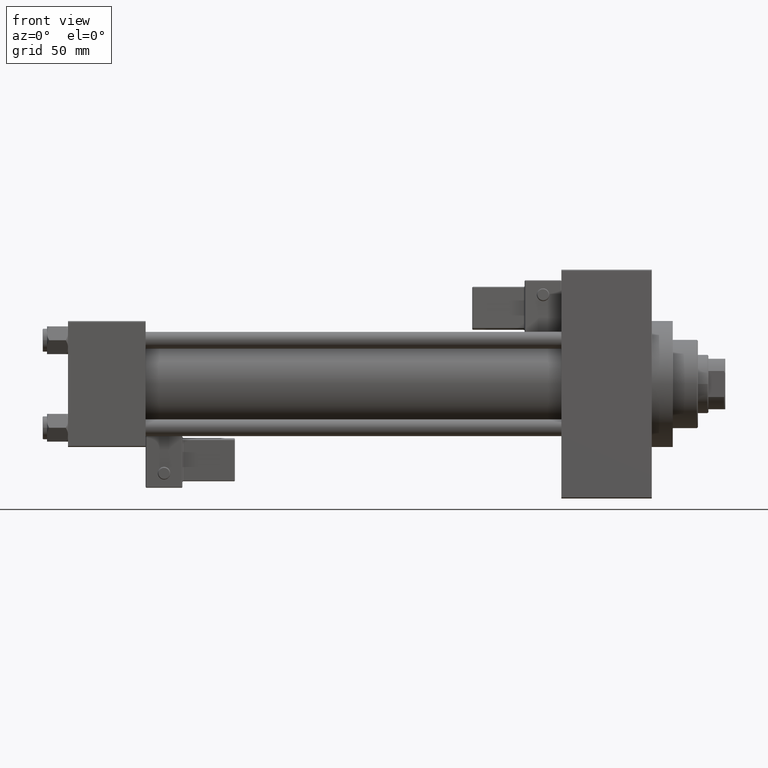
[diagram: clean part render]
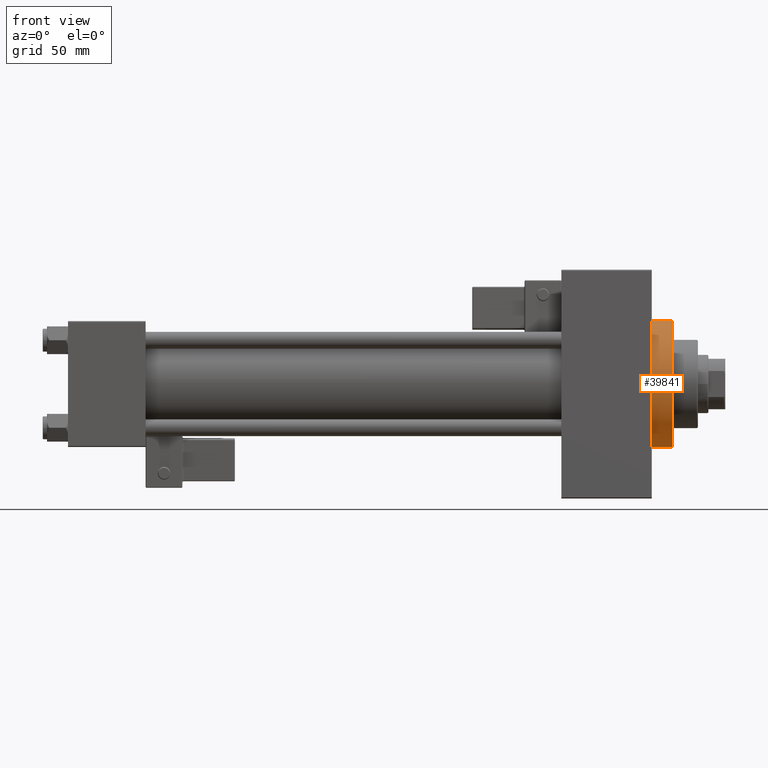
[diagram: same view with one face highlighted and labeled with its STEP entity id]
A machine part, front view. The second image highlights one B-rep face of the part: STEP entity #39841.
In plain terms, the highlighted cylindrical surface (partial cylindrical patch) has radius 30 mm, axis along (-1, -0, -0).
Its self-contained STEP definition (entity closure, byte-faithful):
#2722 = ORIENTED_EDGE ( 'NONE', *, *, #23707, .T. ) ;
#2800 = CARTESIAN_POINT ( 'NONE',  ( 288.0000000000000568, 3.673940397442059178E-15, -30.00000000000000000 ) ) ;
#3856 = DIRECTION ( 'NONE',  ( 1.000000000000000000, 0.000000000000000000, 0.000000000000000000 ) ) ;
#4911 = EDGE_CURVE ( 'NONE', #7836, #33370, #48007, .T. ) ;
#5431 = CIRCLE ( 'NONE', #27935, 30.00000000000000000 ) ;
#7836 = VERTEX_POINT ( 'NONE', #12195 ) ;
#8494 = DIRECTION ( 'NONE',  ( -1.000000000000000000, -0.000000000000000000, -0.000000000000000000 ) ) ;
#10986 = CYLINDRICAL_SURFACE ( 'NONE', #42240, 30.00000000000000000 ) ;
#11090 = EDGE_CURVE ( 'NONE', #16842, #7836, #45709, .T. ) ;
#12097 = VERTEX_POINT ( 'NONE', #45278 ) ;
#12195 = CARTESIAN_POINT ( 'NONE',  ( 278.0000000000000000, 0.000000000000000000, 30.00000000000000000 ) ) ;
#12459 = CARTESIAN_POINT ( 'NONE',  ( 288.0000000000000568, 0.000000000000000000, 0.000000000000000000 ) ) ;
#15709 = DIRECTION ( 'NONE',  ( 1.000000000000000000, 0.000000000000000000, 0.000000000000000000 ) ) ;
#16842 = VERTEX_POINT ( 'NONE', #46425 ) ;
#18280 = FACE_OUTER_BOUND ( 'NONE', #45314, .T. ) ;
#23707 = EDGE_CURVE ( 'NONE', #33370, #12097, #37332, .T. ) ;
#27132 = AXIS2_PLACEMENT_3D ( 'NONE', #49116, #3856, #49359 ) ;
#27804 = DIRECTION ( 'NONE',  ( 1.000000000000000000, 0.000000000000000000, 0.000000000000000000 ) ) ;
#27935 = AXIS2_PLACEMENT_3D ( 'NONE', #12459, #27804, #43137 ) ;
#28739 = VERTEX_POINT ( 'NONE', #2800 ) ;
#30063 = EDGE_CURVE ( 'NONE', #16842, #28739, #5431, .T. ) ;
#30107 = DIRECTION ( 'NONE',  ( 0.000000000000000000, 0.000000000000000000, 1.000000000000000000 ) ) ;
#30527 = VECTOR ( 'NONE', #46510, 1000.000000000000000 ) ;
#30579 = DIRECTION ( 'NONE',  ( 0.000000000000000000, 0.000000000000000000, -1.000000000000000000 ) ) ;
#33191 = ORIENTED_EDGE ( 'NONE', *, *, #4911, .T. ) ;
#33370 = VERTEX_POINT ( 'NONE', #42638 ) ;
#34110 = AXIS2_PLACEMENT_3D ( 'NONE', #38100, #15709, #30579 ) ;
#34164 = CARTESIAN_POINT ( 'NONE',  ( 288.0000000000000568, 0.000000000000000000, 30.00000000000000000 ) ) ;
#37332 = CIRCLE ( 'NONE', #34110, 30.00000000000000000 ) ;
#37780 = VECTOR ( 'NONE', #8494, 1000.000000000000000 ) ;
#38100 = CARTESIAN_POINT ( 'NONE',  ( 278.0000000000000000, 0.000000000000000000, 0.000000000000000000 ) ) ;
#38537 = ORIENTED_EDGE ( 'NONE', *, *, #11090, .T. ) ;
#39841 = ADVANCED_FACE ( 'NONE', ( #18280 ), #10986, .T. ) ;
#40524 = ORIENTED_EDGE ( 'NONE', *, *, #48964, .F. ) ;
#42109 = ORIENTED_EDGE ( 'NONE', *, *, #30063, .F. ) ;
#42240 = AXIS2_PLACEMENT_3D ( 'NONE', #49444, #45406, #30107 ) ;
#42491 = LINE ( 'NONE', #43239, #30527 ) ;
#42638 = CARTESIAN_POINT ( 'NONE',  ( 278.0000000000000000, -30.00000000000000000, 0.000000000000000000 ) ) ;
#43137 = DIRECTION ( 'NONE',  ( 0.000000000000000000, 0.000000000000000000, -1.000000000000000000 ) ) ;
#43239 = CARTESIAN_POINT ( 'NONE',  ( 288.0000000000000568, 3.673940397442059178E-15, -30.00000000000000000 ) ) ;
#45278 = CARTESIAN_POINT ( 'NONE',  ( 278.0000000000000000, 3.673940397442059178E-15, -30.00000000000000000 ) ) ;
#45314 = EDGE_LOOP ( 'NONE', ( #40524, #42109, #38537, #33191, #2722 ) ) ;
#45406 = DIRECTION ( 'NONE',  ( -1.000000000000000000, -0.000000000000000000, -0.000000000000000000 ) ) ;
#45709 = LINE ( 'NONE', #34164, #37780 ) ;
#46425 = CARTESIAN_POINT ( 'NONE',  ( 288.0000000000000568, 0.000000000000000000, 30.00000000000000000 ) ) ;
#46510 = DIRECTION ( 'NONE',  ( -1.000000000000000000, -0.000000000000000000, -0.000000000000000000 ) ) ;
#48007 = CIRCLE ( 'NONE', #27132, 30.00000000000000000 ) ;
#48964 = EDGE_CURVE ( 'NONE', #28739, #12097, #42491, .T. ) ;
#49116 = CARTESIAN_POINT ( 'NONE',  ( 278.0000000000000000, 0.000000000000000000, 0.000000000000000000 ) ) ;
#49359 = DIRECTION ( 'NONE',  ( 0.000000000000000000, 0.000000000000000000, -1.000000000000000000 ) ) ;
#49444 = CARTESIAN_POINT ( 'NONE',  ( 288.0000000000000568, 0.000000000000000000, 0.000000000000000000 ) ) ;